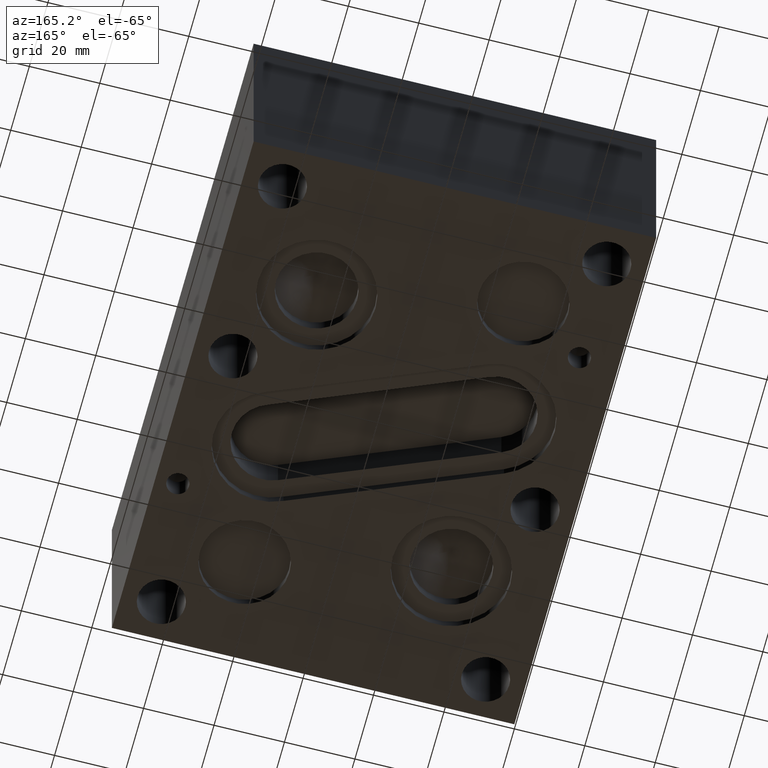
[diagram: clean part render]
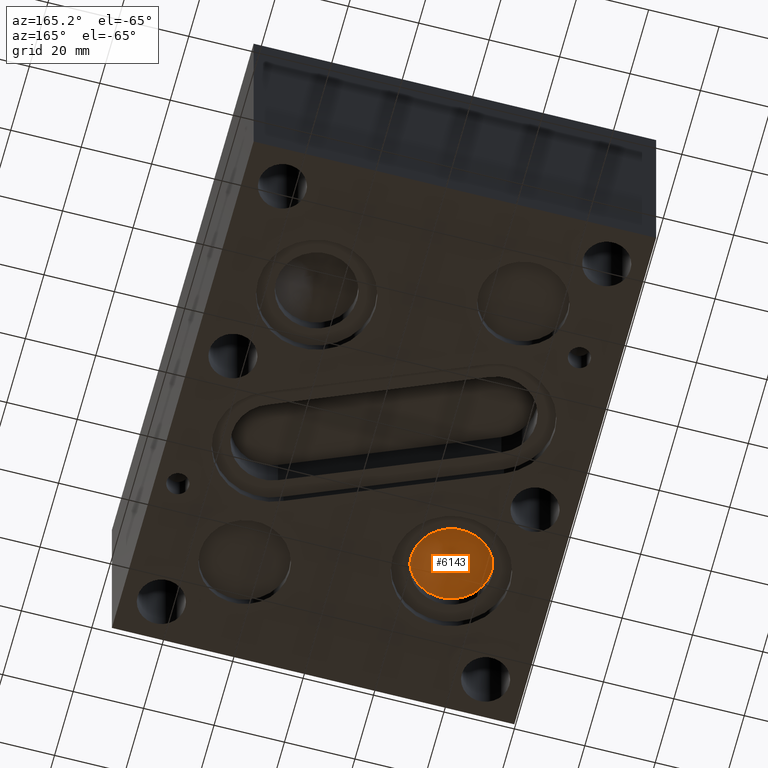
[diagram: same view with one face highlighted and labeled with its STEP entity id]
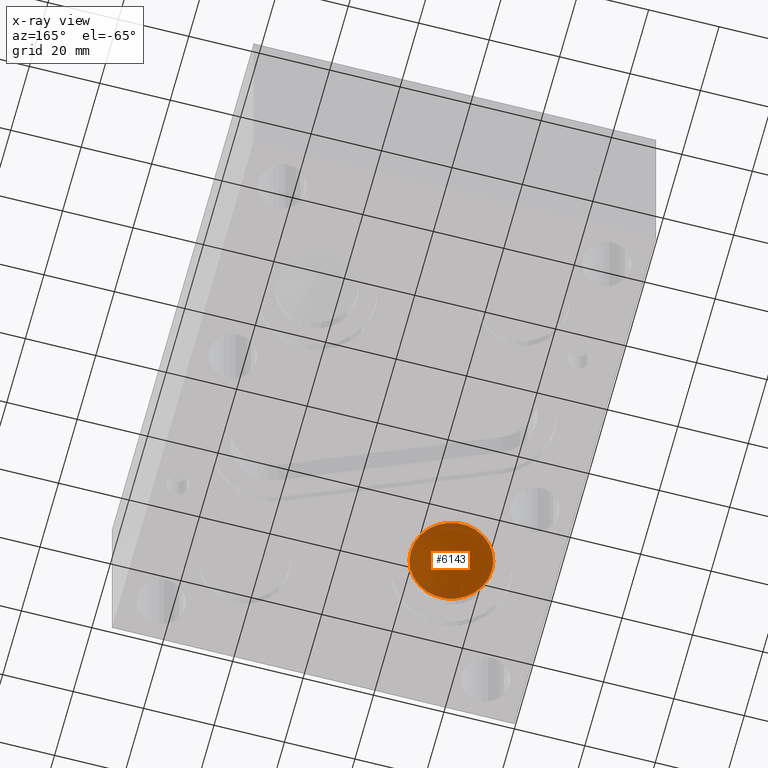
[diagram: x-ray of the same camera — body ghosted, the highlighted face saturated]
A machine part, auxiliary view. The second image highlights one B-rep face of the part: STEP entity #6143.
The next image is the same camera in x-ray: the body ghosted, the highlighted face saturated — about 0% of this face is hidden behind the body in this view.
In plain terms, the highlighted conical surface has half-angle 60 deg.
Its self-contained STEP definition (entity closure, byte-faithful):
#23=CONICAL_SURFACE('',#6413,5.7531,1.0471975511966);
#631=CIRCLE('',#6414,11.5062);
#632=CIRCLE('',#6415,11.5062);
#960=FACE_OUTER_BOUND('',#1308,.T.);
#1308=EDGE_LOOP('',(#5532,#5533,#5534,#5535));
#1934=LINE('',#10379,#2548);
#2548=VECTOR('',#7524,5.7531);
#3109=VERTEX_POINT('',#10375);
#3110=VERTEX_POINT('',#10376);
#3111=VERTEX_POINT('',#10378);
#3932=EDGE_CURVE('',#3109,#3110,#631,.T.);
#3933=EDGE_CURVE('',#3110,#3111,#1934,.T.);
#3934=EDGE_CURVE('',#3110,#3109,#632,.T.);
#5532=ORIENTED_EDGE('',*,*,#3932,.T.);
#5533=ORIENTED_EDGE('',*,*,#3933,.T.);
#5534=ORIENTED_EDGE('',*,*,#3933,.F.);
#5535=ORIENTED_EDGE('',*,*,#3934,.T.);
#6143=ADVANCED_FACE('',(#960),#23,.F.);
#6413=AXIS2_PLACEMENT_3D('',#10374,#7520,#7521);
#6414=AXIS2_PLACEMENT_3D('',#10377,#7522,#7523);
#6415=AXIS2_PLACEMENT_3D('',#10380,#7525,#7526);
#7520=DIRECTION('center_axis',(0.,0.,-1.));
#7521=DIRECTION('ref_axis',(1.,0.,0.));
#7522=DIRECTION('center_axis',(0.,0.,-1.));
#7523=DIRECTION('ref_axis',(1.,0.,0.));
#7524=DIRECTION('',(0.866025403784439,-1.06057523872491E-16,0.5));
#7525=DIRECTION('center_axis',(0.,0.,-1.));
#7526=DIRECTION('ref_axis',(1.,0.,0.));
#10374=CARTESIAN_POINT('Origin',(28.575,40.4622,9.96466383367484));
#10375=CARTESIAN_POINT('',(40.0812,40.4622,6.64311));
#10376=CARTESIAN_POINT('',(17.0688,40.4622,6.64311));
#10377=CARTESIAN_POINT('Origin',(28.575,40.4622,6.64311));
#10378=CARTESIAN_POINT('',(28.575,40.4622,13.2862176673497));
#10379=CARTESIAN_POINT('',(22.8219,40.4622,9.96466383367484));
#10380=CARTESIAN_POINT('Origin',(28.575,40.4622,6.64311));